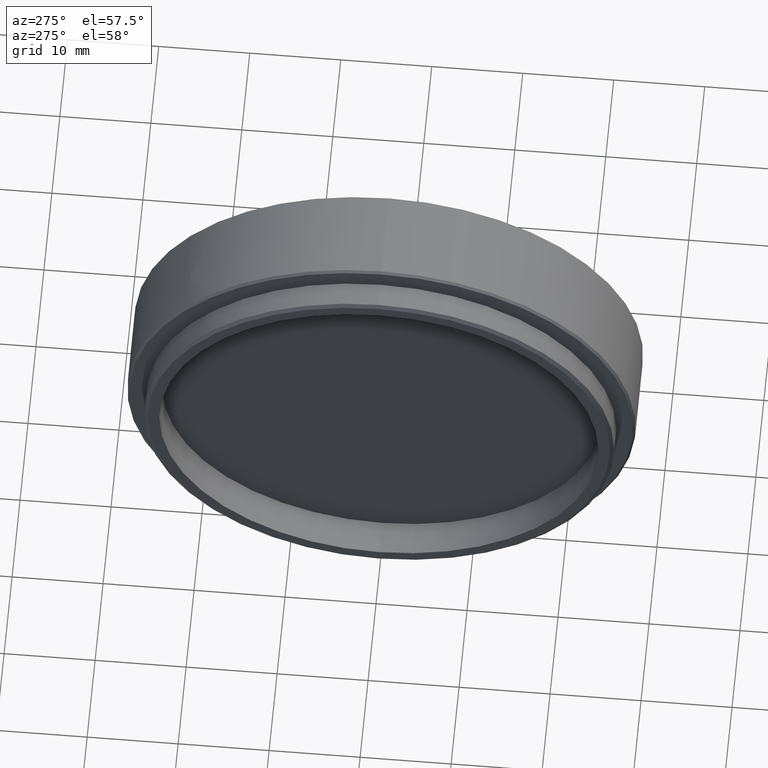
[diagram: clean part render]
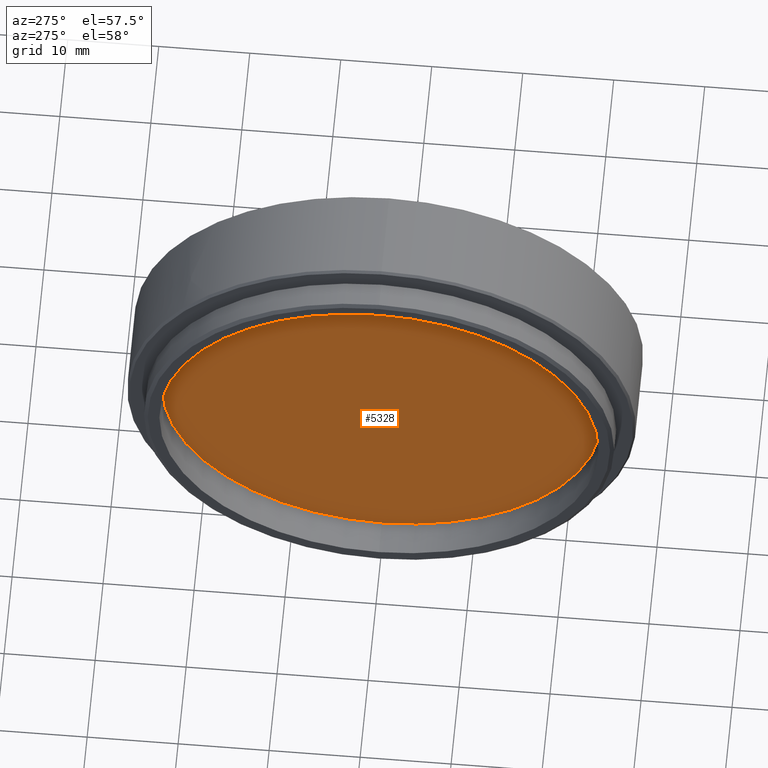
[diagram: same view with one face highlighted and labeled with its STEP entity id]
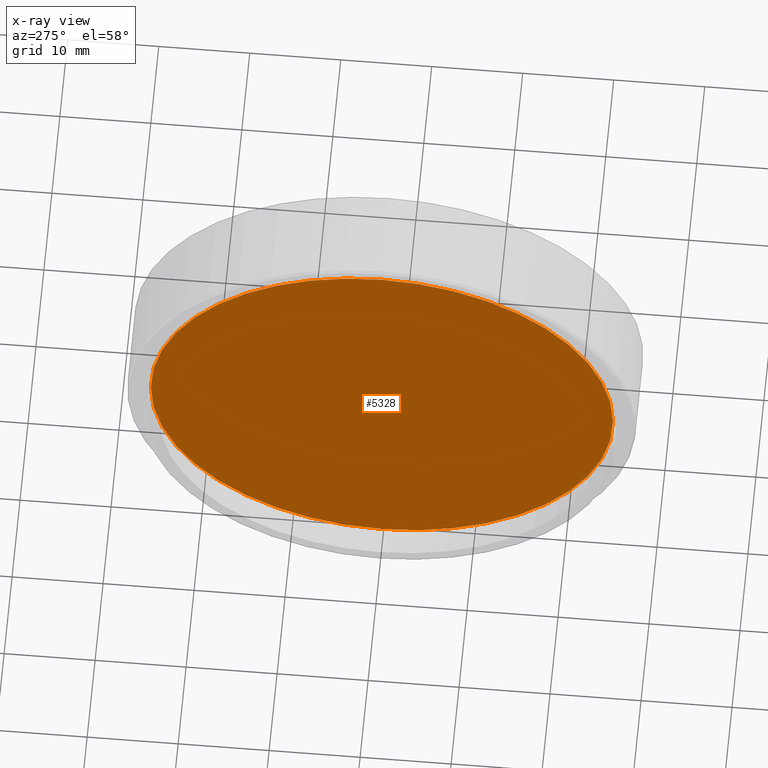
[diagram: x-ray of the same camera — body ghosted, the highlighted face saturated]
A machine part, auxiliary view. The second image highlights one B-rep face of the part: STEP entity #5328.
The next image is the same camera in x-ray: the body ghosted, the highlighted face saturated — about 0% of this face is hidden behind the body in this view.
In plain terms, the highlighted planar face has unit normal (1, 0, 0).
Its self-contained STEP definition (entity closure, byte-faithful):
#405 = DIRECTION ( 'NONE',  ( 1.000000000000000000, 0.0000000000000000000, 0.0000000000000000000 ) ) ;
#912 = CIRCLE ( 'NONE', #3238, 25.39999999999999900 ) ;
#1012 = VERTEX_POINT ( 'NONE', #4439 ) ;
#1360 = VERTEX_POINT ( 'NONE', #4014 ) ;
#1480 = CARTESIAN_POINT ( 'NONE',  ( -2.667000000000002500, 0.0000000000000000000, 0.0000000000000000000 ) ) ;
#1893 = CARTESIAN_POINT ( 'NONE',  ( -2.667000000000002900, 0.0000000000000000000, 0.0000000000000000000 ) ) ;
#2203 = DIRECTION ( 'NONE',  ( 0.0000000000000000000, 0.0000000000000000000, -1.000000000000000000 ) ) ;
#2639 = DIRECTION ( 'NONE',  ( 0.0000000000000000000, 0.0000000000000000000, -1.000000000000000000 ) ) ;
#3238 = AXIS2_PLACEMENT_3D ( 'NONE', #4812, #405, #5544 ) ;
#3434 = AXIS2_PLACEMENT_3D ( 'NONE', #1893, #7014, #2639 ) ;
#4014 = CARTESIAN_POINT ( 'NONE',  ( -2.667000000000002500, 0.0000000000000000000, -25.39999999999999900 ) ) ;
#4439 = CARTESIAN_POINT ( 'NONE',  ( -2.667000000000002500, 3.110602869834276900E-015, 25.39999999999999900 ) ) ;
#4713 = FACE_OUTER_BOUND ( 'NONE', #5462, .T. ) ;
#4812 = CARTESIAN_POINT ( 'NONE',  ( -2.667000000000002500, 0.0000000000000000000, 0.0000000000000000000 ) ) ;
#5275 = CIRCLE ( 'NONE', #9319, 25.39999999999999900 ) ;
#5328 = ADVANCED_FACE ( 'NONE', ( #4713 ), #6294, .F. ) ;
#5462 = EDGE_LOOP ( 'NONE', ( #5607, #8201 ) ) ;
#5544 = DIRECTION ( 'NONE',  ( 0.0000000000000000000, 0.0000000000000000000, -1.000000000000000000 ) ) ;
#5607 = ORIENTED_EDGE ( 'NONE', *, *, #5919, .F. ) ;
#5666 = EDGE_CURVE ( 'NONE', #1012, #1360, #5275, .T. ) ;
#5919 = EDGE_CURVE ( 'NONE', #1360, #1012, #912, .T. ) ;
#6294 = PLANE ( 'NONE',  #3434 ) ;
#6605 = DIRECTION ( 'NONE',  ( 1.000000000000000000, 0.0000000000000000000, 0.0000000000000000000 ) ) ;
#7014 = DIRECTION ( 'NONE',  ( 1.000000000000000000, 0.0000000000000000000, 0.0000000000000000000 ) ) ;
#8201 = ORIENTED_EDGE ( 'NONE', *, *, #5666, .F. ) ;
#9319 = AXIS2_PLACEMENT_3D ( 'NONE', #1480, #6605, #2203 ) ;